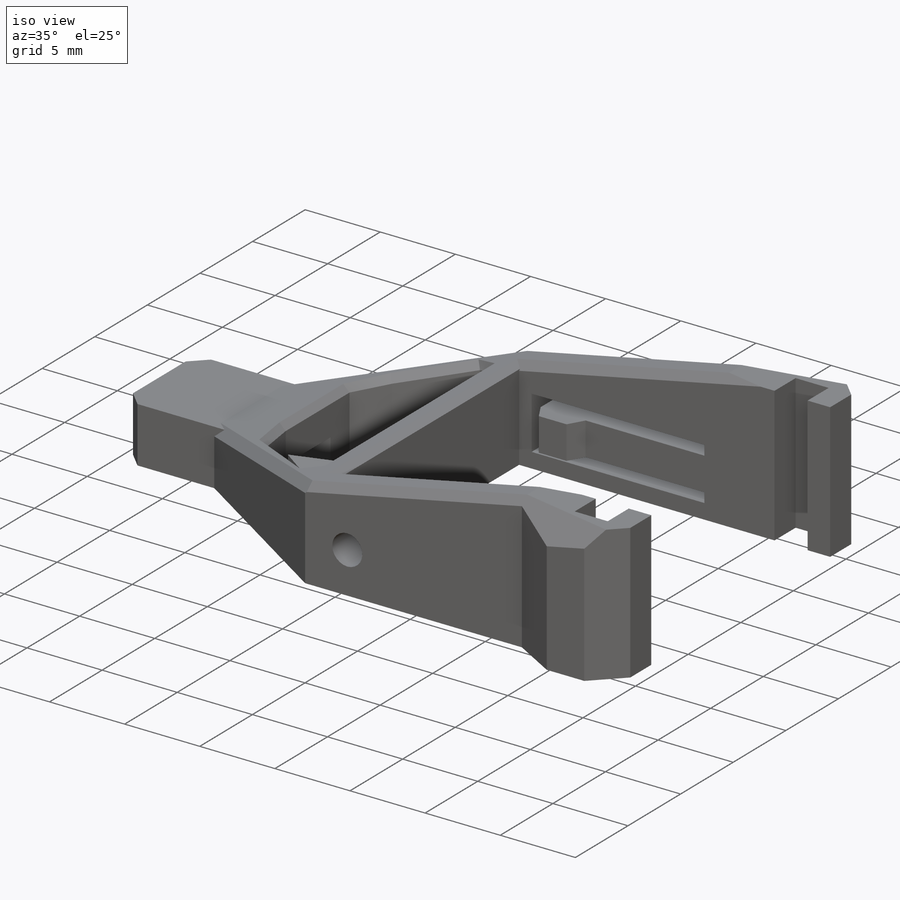
[diagram: iso view]
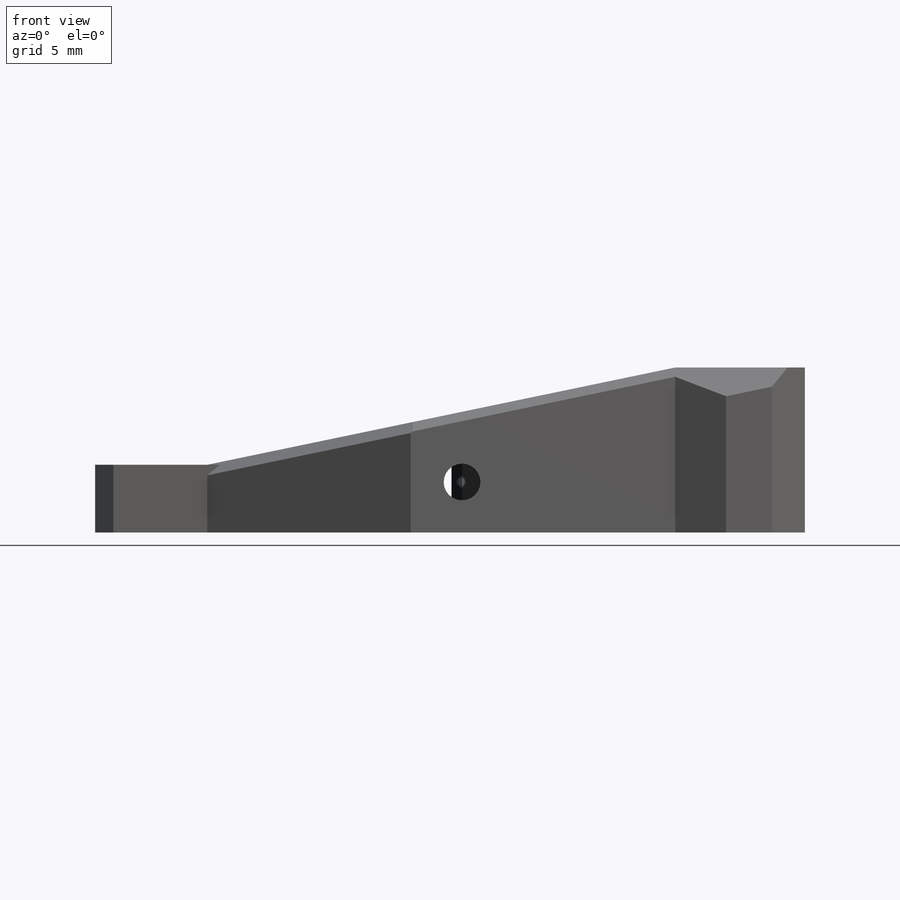
[diagram: front view]
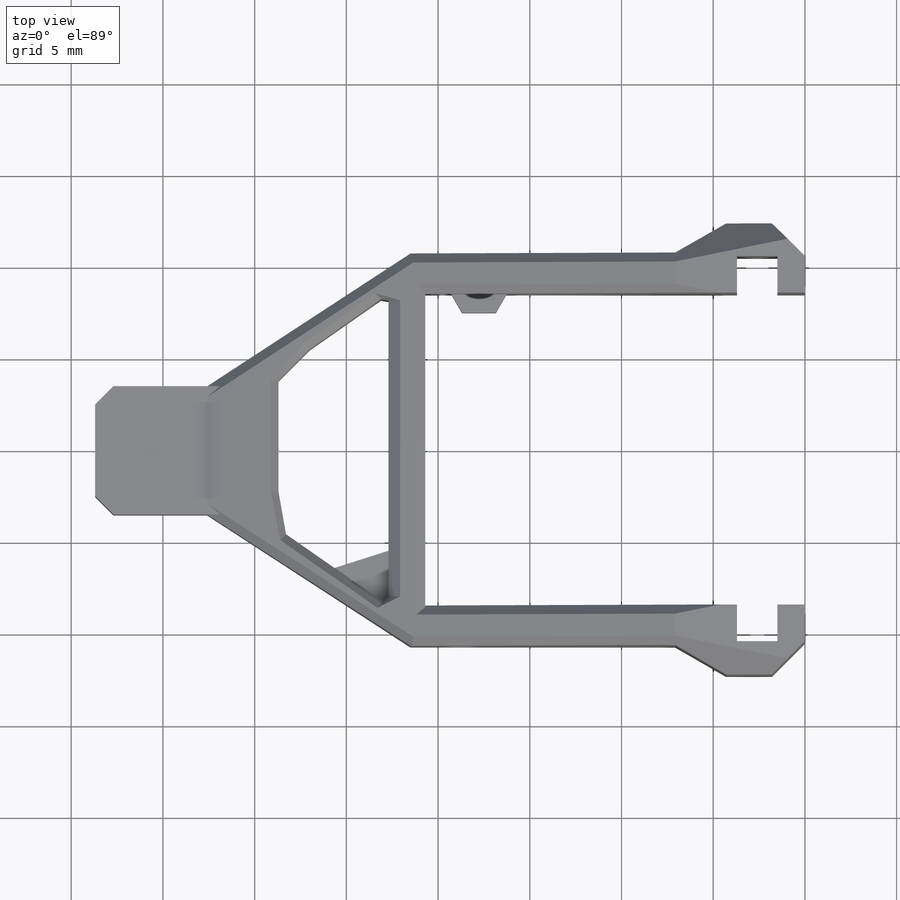
[diagram: top view]
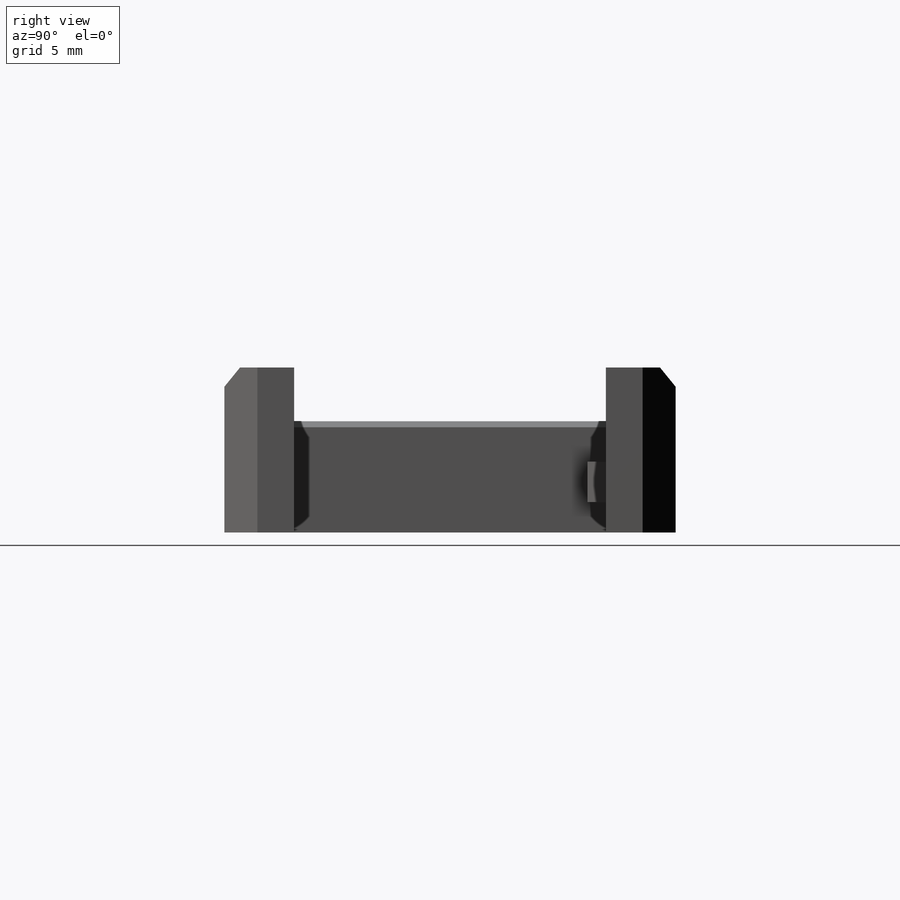
[diagram: right view]
SOLIDWORKS PART (.sldprt)
format: sldprt  version: not decoded by parser v0  size: 412,160 bytes
history: native  units: mm
features: sketch x8, cut_extrude x4, plane x3, extrude x3, material x1, chamfer x1 (+10 scaffold rows collapsed)
feature tree (30):
  scaffold x10  (default folders/planes/origin — collapsed)
  material  "uhlíková ocel 7850"
  plane  "Přední rovina"
  plane  "Horní rovina"
  plane  "Pravá rovina"
  sketch  "Skica1"  dims[c1.D1=1.5mm c1.D2=2.2mm c1.D3=1.8mm c1.D4=17.0mm c1.D5=~0.829632mm c2.D5=135.0deg c2.D6=17.0mm c2.D7=2.5mm c2.D8=2.0mm c2.D9=2.2mm c2.D10=~19.955389mm c3.D10=30.0deg c3.D11=2.0mm c3.D12=6.0mm c3.D13=6.0mm c4.D13=25.0deg c4.D14=~5.629115mm c5.D14=1.0deg c5.D15=21.5mm c6.D14=~9.977077mm c7.D14=5.0deg c7.D16=10.0mm c7.D17=7.0mm c7.D13=6.0mm c8.D13=35.0deg c8.D14=~1.160722mm c9.D14=135.0deg c9.D18=2.5mm c9.D19=~13.402544mm c10.D19=2.0deg]
  extrude  "Přidat vysunutím1"  Depth=9mm
  sketch  "Skica2"  dims[D1=3.0mm]
  cut_extrude  "Odebrat vysunutím1"  Depth=12mm
  sketch  "Skica3"  dims[D1=4.0mm D2=2.0mm]
  cut_extrude  "Odebrat vysunutím2"  Depth=12mm
  chamfer  "Zkosení1"  Distance=0.5mm Angle=45deg
  sketch  "Skica4"  dims[c1.D1=2.2mm c1.D2=3.5mm c1.D3=11.5mm c1.D4=0.6mm c1.D5=1.0mm c1.D6=1.3mm c2.D4=0.6mm]
  cut_extrude  "Odebrat vysunutím3"  Depth=12mm
  sketch  "Skica5"  dims[c1.D1=1.0mm c1.D2=1.0mm c2.D2=60.0deg c2.D3=3.0mm]
  extrude  "Přidat vysunutím2"  [1 undecoded]
  sketch  "Skica6"  dims[D1=2.5mm]
  extrude  "Přidat vysunutím3"  Depth=5mm
  sketch  "Skica7"  dims[D1=1.8mm]
  sketch  "Skica8"  dims[D1=2.0mm]
  cut_extrude  "Odebrat vysunutím4"  Depth=5mm
decode coverage: 15 of 16 modeling features carry decoded parameters
note: ~ marks probable driven/reference dimensions
note: 1 parameter value undecoded
note: suppression state not decoded; provenance and decode notes live in map.json
